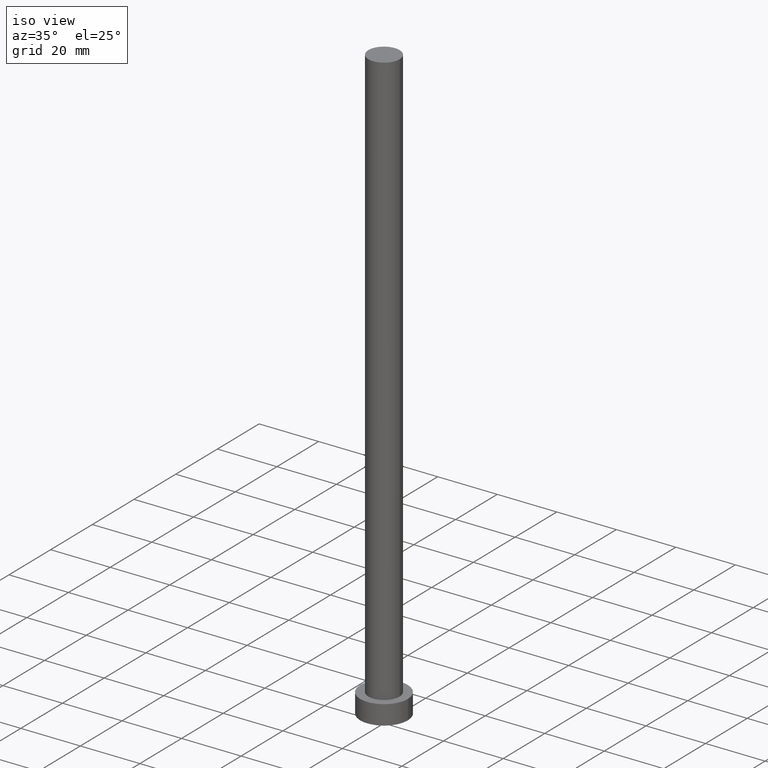
[diagram: clean part render]
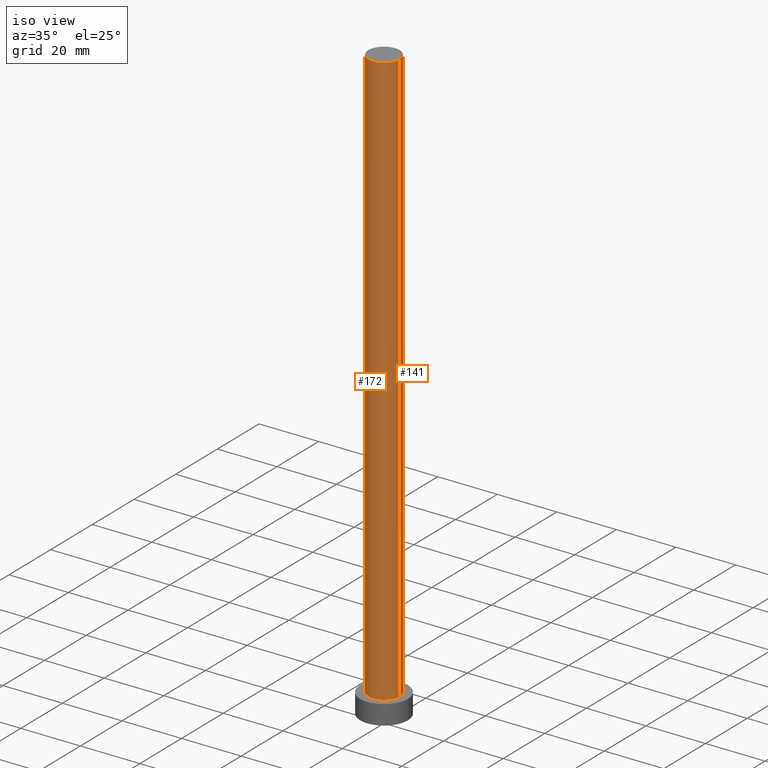
[diagram: same view with one multi-face feature highlighted, each face labeled with its STEP entity id]
A machine part, iso view. The highlighted faces form ONE feature: a constant-radius fillet chain: 2 tangent blend faces with common blend radius 5.25 mm. The faces share edges in the B-rep.
Their STEP definitions:
[1] entity #141 (Cylinder):
#3 = CIRCLE ( 'NONE', #24, 5.250000000000000888 ) ;
#5 = VECTOR ( 'NONE', #173, 1000.000000000000000 ) ;
#15 = CARTESIAN_POINT ( 'NONE',  ( -5.250000000000000888, 0.000000000000000000, 6.500000000000000000 ) ) ;
#17 = LINE ( 'NONE', #250, #5 ) ;
#20 = CARTESIAN_POINT ( 'NONE',  ( 0.000000000000000000, 0.000000000000000000, 200.0000000000000000 ) ) ;
#24 = AXIS2_PLACEMENT_3D ( 'NONE', #82, #241, #199 ) ;
#34 = CARTESIAN_POINT ( 'NONE',  ( 0.000000000000000000, 0.000000000000000000, 200.0000000000000000 ) ) ;
#45 = AXIS2_PLACEMENT_3D ( 'NONE', #34, #98, #100 ) ;
#50 = CARTESIAN_POINT ( 'NONE',  ( 5.250000000000000888, 6.429395695523605139E-16, 200.0000000000000000 ) ) ;
#63 = ORIENTED_EDGE ( 'NONE', *, *, #248, .T. ) ;
#64 = CARTESIAN_POINT ( 'NONE',  ( 5.250000000000000888, 6.429395695523605139E-16, 6.500000000000000000 ) ) ;
#73 = EDGE_CURVE ( 'NONE', #99, #249, #168, .T. ) ;
#75 = EDGE_LOOP ( 'NONE', ( #224, #242, #63, #150 ) ) ;
#81 = EDGE_CURVE ( 'NONE', #209, #122, #17, .T. ) ;
#82 = CARTESIAN_POINT ( 'NONE',  ( 0.000000000000000000, 0.000000000000000000, 6.500000000000000000 ) ) ;
#86 = CYLINDRICAL_SURFACE ( 'NONE', #197, 5.250000000000000888 ) ;
#87 = DIRECTION ( 'NONE',  ( -1.000000000000000000, 0.000000000000000000, 0.000000000000000000 ) ) ;
#98 = DIRECTION ( 'NONE',  ( 0.000000000000000000, 0.000000000000000000, 1.000000000000000000 ) ) ;
#99 = VERTEX_POINT ( 'NONE', #231 ) ;
#100 = DIRECTION ( 'NONE',  ( 1.000000000000000000, 0.000000000000000000, 0.000000000000000000 ) ) ;
#104 = DIRECTION ( 'NONE',  ( -0.000000000000000000, -0.000000000000000000, -1.000000000000000000 ) ) ;
#106 = CIRCLE ( 'NONE', #45, 5.250000000000000888 ) ;
#118 = VECTOR ( 'NONE', #226, 1000.000000000000000 ) ;
#122 = VERTEX_POINT ( 'NONE', #15 ) ;
#141 = ADVANCED_FACE ( 'NONE', ( #191 ), #86, .T. ) ;
#150 = ORIENTED_EDGE ( 'NONE', *, *, #81, .F. ) ;
#168 = LINE ( 'NONE', #50, #118 ) ;
#173 = DIRECTION ( 'NONE',  ( -0.000000000000000000, -0.000000000000000000, -1.000000000000000000 ) ) ;
#191 = FACE_OUTER_BOUND ( 'NONE', #75, .T. ) ;
#197 = AXIS2_PLACEMENT_3D ( 'NONE', #20, #104, #87 ) ;
#199 = DIRECTION ( 'NONE',  ( 1.000000000000000000, 0.000000000000000000, 0.000000000000000000 ) ) ;
#205 = CARTESIAN_POINT ( 'NONE',  ( -5.250000000000000888, 0.000000000000000000, 200.0000000000000000 ) ) ;
#209 = VERTEX_POINT ( 'NONE', #205 ) ;
#219 = EDGE_CURVE ( 'NONE', #99, #209, #106, .T. ) ;
#224 = ORIENTED_EDGE ( 'NONE', *, *, #219, .F. ) ;
#226 = DIRECTION ( 'NONE',  ( -0.000000000000000000, -0.000000000000000000, -1.000000000000000000 ) ) ;
#231 = CARTESIAN_POINT ( 'NONE',  ( 5.250000000000000888, 6.429395695523605139E-16, 200.0000000000000000 ) ) ;
#241 = DIRECTION ( 'NONE',  ( 0.000000000000000000, 0.000000000000000000, 1.000000000000000000 ) ) ;
#242 = ORIENTED_EDGE ( 'NONE', *, *, #73, .T. ) ;
#248 = EDGE_CURVE ( 'NONE', #249, #122, #3, .T. ) ;
#249 = VERTEX_POINT ( 'NONE', #64 ) ;
#250 = CARTESIAN_POINT ( 'NONE',  ( -5.250000000000000888, 0.000000000000000000, 200.0000000000000000 ) ) ;
[2] entity #172 (Cylinder):
#4 = CARTESIAN_POINT ( 'NONE',  ( 0.000000000000000000, 0.000000000000000000, 200.0000000000000000 ) ) ;
#5 = VECTOR ( 'NONE', #173, 1000.000000000000000 ) ;
#6 = CYLINDRICAL_SURFACE ( 'NONE', #203, 5.250000000000000888 ) ;
#10 = DIRECTION ( 'NONE',  ( 0.000000000000000000, 0.000000000000000000, 1.000000000000000000 ) ) ;
#15 = CARTESIAN_POINT ( 'NONE',  ( -5.250000000000000888, 0.000000000000000000, 6.500000000000000000 ) ) ;
#17 = LINE ( 'NONE', #250, #5 ) ;
#37 = CARTESIAN_POINT ( 'NONE',  ( 0.000000000000000000, 0.000000000000000000, 200.0000000000000000 ) ) ;
#50 = CARTESIAN_POINT ( 'NONE',  ( 5.250000000000000888, 6.429395695523605139E-16, 200.0000000000000000 ) ) ;
#58 = DIRECTION ( 'NONE',  ( -0.000000000000000000, -0.000000000000000000, -1.000000000000000000 ) ) ;
#64 = CARTESIAN_POINT ( 'NONE',  ( 5.250000000000000888, 6.429395695523605139E-16, 6.500000000000000000 ) ) ;
#73 = EDGE_CURVE ( 'NONE', #99, #249, #168, .T. ) ;
#81 = EDGE_CURVE ( 'NONE', #209, #122, #17, .T. ) ;
#84 = EDGE_LOOP ( 'NONE', ( #145, #202, #180, #200 ) ) ;
#90 = AXIS2_PLACEMENT_3D ( 'NONE', #183, #10, #184 ) ;
#99 = VERTEX_POINT ( 'NONE', #231 ) ;
#112 = DIRECTION ( 'NONE',  ( 0.000000000000000000, 0.000000000000000000, 1.000000000000000000 ) ) ;
#117 = EDGE_CURVE ( 'NONE', #209, #99, #147, .T. ) ;
#118 = VECTOR ( 'NONE', #226, 1000.000000000000000 ) ;
#122 = VERTEX_POINT ( 'NONE', #15 ) ;
#134 = DIRECTION ( 'NONE',  ( 1.000000000000000000, 0.000000000000000000, 0.000000000000000000 ) ) ;
#145 = ORIENTED_EDGE ( 'NONE', *, *, #73, .F. ) ;
#147 = CIRCLE ( 'NONE', #148, 5.250000000000000888 ) ;
#148 = AXIS2_PLACEMENT_3D ( 'NONE', #37, #112, #134 ) ;
#158 = DIRECTION ( 'NONE',  ( -1.000000000000000000, 0.000000000000000000, 0.000000000000000000 ) ) ;
#168 = LINE ( 'NONE', #50, #118 ) ;
#172 = ADVANCED_FACE ( 'NONE', ( #213 ), #6, .T. ) ;
#173 = DIRECTION ( 'NONE',  ( -0.000000000000000000, -0.000000000000000000, -1.000000000000000000 ) ) ;
#175 = CIRCLE ( 'NONE', #90, 5.250000000000000888 ) ;
#180 = ORIENTED_EDGE ( 'NONE', *, *, #81, .T. ) ;
#183 = CARTESIAN_POINT ( 'NONE',  ( 0.000000000000000000, 0.000000000000000000, 6.500000000000000000 ) ) ;
#184 = DIRECTION ( 'NONE',  ( 1.000000000000000000, 0.000000000000000000, 0.000000000000000000 ) ) ;
#200 = ORIENTED_EDGE ( 'NONE', *, *, #225, .T. ) ;
#202 = ORIENTED_EDGE ( 'NONE', *, *, #117, .F. ) ;
#203 = AXIS2_PLACEMENT_3D ( 'NONE', #4, #58, #158 ) ;
#205 = CARTESIAN_POINT ( 'NONE',  ( -5.250000000000000888, 0.000000000000000000, 200.0000000000000000 ) ) ;
#209 = VERTEX_POINT ( 'NONE', #205 ) ;
#213 = FACE_OUTER_BOUND ( 'NONE', #84, .T. ) ;
#225 = EDGE_CURVE ( 'NONE', #122, #249, #175, .T. ) ;
#226 = DIRECTION ( 'NONE',  ( -0.000000000000000000, -0.000000000000000000, -1.000000000000000000 ) ) ;
#231 = CARTESIAN_POINT ( 'NONE',  ( 5.250000000000000888, 6.429395695523605139E-16, 200.0000000000000000 ) ) ;
#249 = VERTEX_POINT ( 'NONE', #64 ) ;
#250 = CARTESIAN_POINT ( 'NONE',  ( -5.250000000000000888, 0.000000000000000000, 200.0000000000000000 ) ) ;